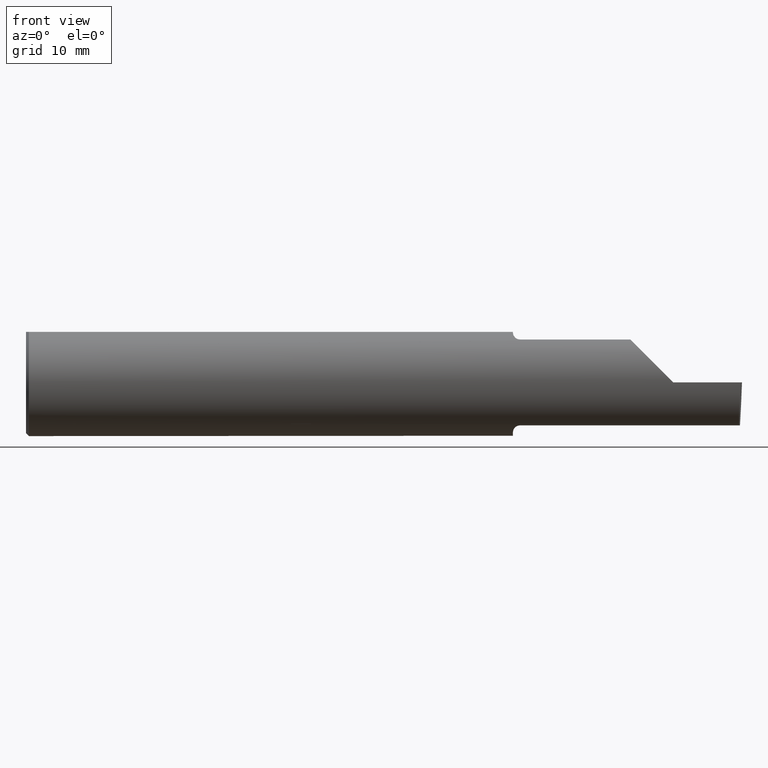
[diagram: clean part render]
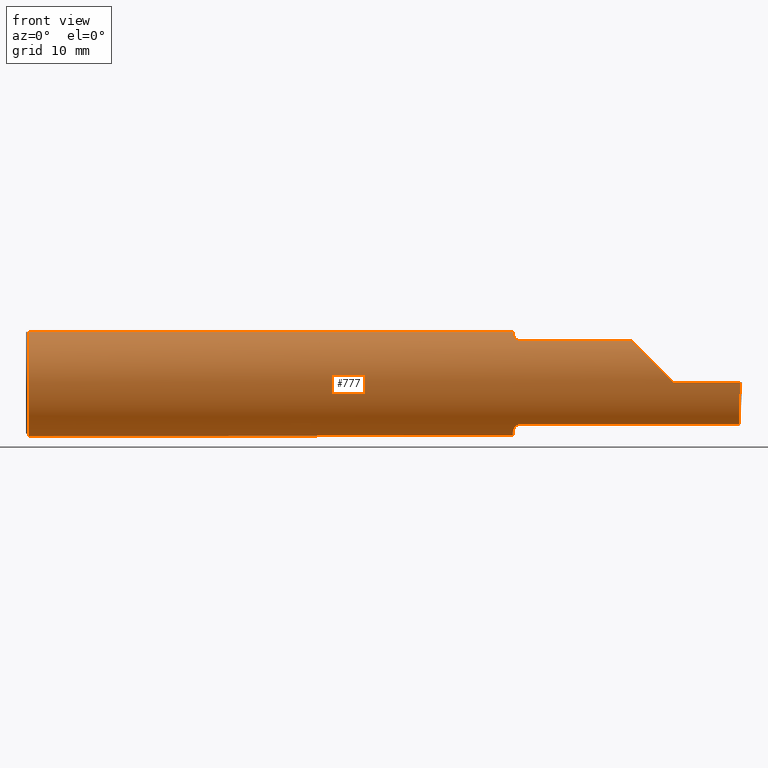
[diagram: same view with one face highlighted and labeled with its STEP entity id]
A machine part, front view. The second image highlights one B-rep face of the part: STEP entity #777.
In plain terms, the highlighted cylindrical surface (partial cylindrical patch) has radius 4.7587 mm, axis along (-1, -0, -0).
Its self-contained STEP definition (entity closure, byte-faithful):
#3 = B_SPLINE_CURVE_WITH_KNOTS ( 'NONE', 3,
 ( #626, #388, #646, #507 ),
 .UNSPECIFIED., .F., .F.,
 ( 4, 4 ),
 ( 0.001278539404338877245, 0.001694873732696222440 ),
 .UNSPECIFIED. ) ;
#14 =( BOUNDED_CURVE ( )  B_SPLINE_CURVE ( 3, ( #42, #156, #532, #283 ),
 .UNSPECIFIED., .F., .F. ) 
 B_SPLINE_CURVE_WITH_KNOTS ( ( 4, 4 ),
 ( 0.2128041086811296445, 1.107331509589577045 ),
 .UNSPECIFIED. ) 
 CURVE ( )  GEOMETRIC_REPRESENTATION_ITEM ( )  RATIONAL_B_SPLINE_CURVE ( ( 1.000000000000000000, 0.9344226172588803170, 0.9344226172588803170, 1.000000000000000000 ) ) 
 REPRESENTATION_ITEM ( '' )  );
#15 = CARTESIAN_POINT ( 'NONE',  ( 1.724999999999999867, -0.1172600179964006784, -0.1461167706989303650 ) ) ;
#16 = DIRECTION ( 'NONE',  ( -1.000000000000000000, -0.000000000000000000, -0.000000000000000000 ) ) ;
#17 = EDGE_CURVE ( 'NONE', #339, #361, #64, .T. ) ;
#29 = VERTEX_POINT ( 'NONE', #349 ) ;
#33 = EDGE_CURVE ( 'NONE', #548, #312, #539, .T. ) ;
#42 = CARTESIAN_POINT ( 'NONE',  ( 2.490040979592266890, -0.1172600179964006784, -0.1461167706989303650 ) ) ;
#57 = VERTEX_POINT ( 'NONE', #783 ) ;
#59 = CIRCLE ( 'NONE', #91, 0.1873499999999999888 ) ;
#63 = DIRECTION ( 'NONE',  ( -1.000000000000000000, -0.000000000000000000, -0.000000000000000000 ) ) ;
#64 = LINE ( 'NONE', #748, #293 ) ;
#71 = CARTESIAN_POINT ( 'NONE',  ( 0.000000000000000000, 0.000000000000000000, 0.000000000000000000 ) ) ;
#83 = CARTESIAN_POINT ( 'NONE',  ( 2.113883229301068312, -0.1172600179964008171, 0.1461167706989301707 ) ) ;
#85 = DIRECTION ( 'NONE',  ( 0.000000000000000000, 0.000000000000000000, -1.000000000000000000 ) ) ;
#91 = AXIS2_PLACEMENT_3D ( 'NONE', #584, #328, #85 ) ;
#94 = CARTESIAN_POINT ( 'NONE',  ( 1.701062863587533558, -0.08334999999998819742, 0.1677879614275170628 ) ) ;
#121 = CARTESIAN_POINT ( 'NONE',  ( 2.088979999999999837, -0.1172600179964006784, -0.1461167706989303650 ) ) ;
#123 = VECTOR ( 'NONE', #259, 39.37007874015748143 ) ;
#125 = B_SPLINE_CURVE_WITH_KNOTS ( 'NONE', 3,
 ( #94, #221, #648, #670, #291, #470, #720, #588 ),
 .UNSPECIFIED., .F., .F.,
 ( 4, 2, 2, 4 ),
 ( 0.0004561457252213466573, 0.001084815134961801542, 0.001399149839832030014, 0.001713484544702258486 ),
 .UNSPECIFIED. ) ;
#131 = B_SPLINE_CURVE_WITH_KNOTS ( 'NONE', 3,
 ( #15, #269, #226, #334, #285, #140, #530, #586, #275, #210, #615, #557 ),
 .UNSPECIFIED., .F., .F.,
 ( 4, 2, 2, 2, 2, 4 ),
 ( 1.967976973658592312E-07, 0.0001599896235275545693, 0.0003197824493577432442, 0.0006393681010181212444, 0.0009589537526784992988, 0.001278539404338877245 ),
 .UNSPECIFIED. ) ;
#137 = LINE ( 'NONE', #121, #123 ) ;
#138 = EDGE_CURVE ( 'NONE', #590, #367, #131, .T. ) ;
#139 = CIRCLE ( 'NONE', #248, 0.1873499999999999888 ) ;
#140 = CARTESIAN_POINT ( 'NONE',  ( 1.711340974786206282, -0.1102890168945987320, -0.1514792188789464700 ) ) ;
#141 = CARTESIAN_POINT ( 'NONE',  ( 0.01000000000000013205, 0.06325108694718235836, 0.1763499999999999235 ) ) ;
#143 = CARTESIAN_POINT ( 'NONE',  ( 2.113883229301068312, -0.1172600179964008171, 0.1461167706989301707 ) ) ;
#156 = CARTESIAN_POINT ( 'NONE',  ( 2.490517704308097713, -0.1623470442677540926, -0.1099340280425338268 ) ) ;
#170 = EDGE_CURVE ( 'NONE', #812, #251, #723, .T. ) ;
#177 = ORIENTED_EDGE ( 'NONE', *, *, #33, .F. ) ;
#179 = ORIENTED_EDGE ( 'NONE', *, *, #303, .F. ) ;
#206 = CARTESIAN_POINT ( 'NONE',  ( 0.01000000000000013205, 0.000000000000000000, 0.000000000000000000 ) ) ;
#210 = CARTESIAN_POINT ( 'NONE',  ( 1.702380638915944600, -0.09060738690120614947, -0.1640321561807271122 ) ) ;
#221 = CARTESIAN_POINT ( 'NONE',  ( 1.702158970028690321, -0.09067355718685707333, 0.1641499263364886718 ) ) ;
#223 = CIRCLE ( 'NONE', #488, 0.1873499999999999888 ) ;
#226 = CARTESIAN_POINT ( 'NONE',  ( 1.720804171164107332, -0.1167508198888949772, -0.1465276362740037253 ) ) ;
#229 = EDGE_CURVE ( 'NONE', #812, #57, #622, .T. ) ;
#232 = ORIENTED_EDGE ( 'NONE', *, *, #742, .F. ) ;
#233 = ORIENTED_EDGE ( 'NONE', *, *, #357, .F. ) ;
#238 = VERTEX_POINT ( 'NONE', #489 ) ;
#239 = CARTESIAN_POINT ( 'NONE',  ( 2.202189699843948745, -0.1873500000000000443, 0.05781030015605096578 ) ) ;
#240 = CARTESIAN_POINT ( 'NONE',  ( 0.01000000000000013205, 0.000000000000000000, 0.000000000000000000 ) ) ;
#241 = ORIENTED_EDGE ( 'NONE', *, *, #666, .T. ) ;
#248 = AXIS2_PLACEMENT_3D ( 'NONE', #206, #655, #786 ) ;
#251 = VERTEX_POINT ( 'NONE', #684 ) ;
#256 = EDGE_LOOP ( 'NONE', ( #233, #241, #495, #630, #232, #659, #177, #552, #427, #792, #579, #807, #179, #481, #437 ) ) ;
#259 = DIRECTION ( 'NONE',  ( -1.000000000000000000, -0.000000000000000000, -0.000000000000000000 ) ) ;
#267 = CARTESIAN_POINT ( 'NONE',  ( 0.01000000000000013205, -0.06325108694718235836, 0.1763499999999999235 ) ) ;
#269 = CARTESIAN_POINT ( 'NONE',  ( 1.722868998470238333, -0.1172600179964006922, -0.1461167706989302539 ) ) ;
#275 = CARTESIAN_POINT ( 'NONE',  ( 1.704475235432781455, -0.09757364237049408195, -0.1599863467203317680 ) ) ;
#283 = CARTESIAN_POINT ( 'NONE',  ( 2.493920841729410753, -0.1873499999999999888, 0.000000000000000000 ) ) ;
#285 = CARTESIAN_POINT ( 'NONE',  ( 1.715551048069661411, -0.1140002044565611578, -0.1486821290834929865 ) ) ;
#291 = CARTESIAN_POINT ( 'NONE',  ( 1.711319809340845488, -0.1102629523538396217, 0.1514982751257169802 ) ) ;
#293 = VECTOR ( 'NONE', #372, 39.37007874015748143 ) ;
#299 = CARTESIAN_POINT ( 'NONE',  ( 2.260000000000000231, -0.1873499999999999888, 2.939152317953647352E-17 ) ) ;
#303 = EDGE_CURVE ( 'NONE', #561, #339, #59, .T. ) ;
#312 = VERTEX_POINT ( 'NONE', #323 ) ;
#323 = CARTESIAN_POINT ( 'NONE',  ( 1.701062863587533558, -0.08334999999998819742, 0.1677879614275170628 ) ) ;
#326 = DIRECTION ( 'NONE',  ( 1.000000000000000000, 0.000000000000000000, 0.000000000000000000 ) ) ;
#328 = DIRECTION ( 'NONE',  ( 1.000000000000000000, 0.000000000000000000, 0.000000000000000000 ) ) ;
#330 = EDGE_CURVE ( 'NONE', #251, #548, #223, .T. ) ;
#334 = CARTESIAN_POINT ( 'NONE',  ( 1.717163414264744281, -0.1151183835841406849, -0.1478135984872520625 ) ) ;
#336 = EDGE_CURVE ( 'NONE', #492, #29, #515, .T. ) ;
#339 = VERTEX_POINT ( 'NONE', #385 ) ;
#342 = CARTESIAN_POINT ( 'NONE',  ( 1.699999999999999289, -0.07360907839729502466, 0.1723706084642000480 ) ) ;
#349 = CARTESIAN_POINT ( 'NONE',  ( 2.260000000000000231, -0.1873499999999999888, 2.939152317953647352E-17 ) ) ;
#357 = EDGE_CURVE ( 'NONE', #634, #590, #137, .T. ) ;
#361 = VERTEX_POINT ( 'NONE', #141 ) ;
#367 = VERTEX_POINT ( 'NONE', #641 ) ;
#369 = EDGE_CURVE ( 'NONE', #367, #561, #3, .T. ) ;
#372 = DIRECTION ( 'NONE',  ( -1.000000000000000000, -0.000000000000000000, -0.000000000000000000 ) ) ;
#385 = CARTESIAN_POINT ( 'NONE',  ( 1.699999999999999956, 0.06325108694718235836, 0.1763499999999999235 ) ) ;
#387 = LINE ( 'NONE', #694, #751 ) ;
#388 = CARTESIAN_POINT ( 'NONE',  ( 1.700346246588684940, -0.07856197451716398494, -0.1701664510438046507 ) ) ;
#427 = ORIENTED_EDGE ( 'NONE', *, *, #170, .F. ) ;
#437 = ORIENTED_EDGE ( 'NONE', *, *, #138, .F. ) ;
#443 = AXIS2_PLACEMENT_3D ( 'NONE', #240, #675, #605 ) ;
#448 = CARTESIAN_POINT ( 'NONE',  ( 1.699999999999999956, 0.000000000000000000, 0.000000000000000000 ) ) ;
#456 = DIRECTION ( 'NONE',  ( 0.000000000000000000, 0.000000000000000000, -1.000000000000000000 ) ) ;
#470 = CARTESIAN_POINT ( 'NONE',  ( 1.716924463282974322, -0.1152182125075827540, 0.1477647100440765970 ) ) ;
#473 = CARTESIAN_POINT ( 'NONE',  ( 1.699999999999999956, -0.06851976604679071992, 0.1743704796142198366 ) ) ;
#480 = CARTESIAN_POINT ( 'NONE',  ( 0.000000000000000000, -0.06325108694718235836, 0.1763499999999999235 ) ) ;
#481 = ORIENTED_EDGE ( 'NONE', *, *, #369, .F. ) ;
#487 = CARTESIAN_POINT ( 'NONE',  ( 2.150065971957465294, -0.1623470442677542591, 0.1099340280425336325 ) ) ;
#488 = AXIS2_PLACEMENT_3D ( 'NONE', #448, #496, #456 ) ;
#489 = CARTESIAN_POINT ( 'NONE',  ( 1.724999999999999867, -0.1172600179964006645, 0.1461167706989303372 ) ) ;
#492 = VERTEX_POINT ( 'NONE', #775 ) ;
#495 = ORIENTED_EDGE ( 'NONE', *, *, #336, .T. ) ;
#496 = DIRECTION ( 'NONE',  ( 1.000000000000000000, 0.000000000000000000, 0.000000000000000000 ) ) ;
#507 = CARTESIAN_POINT ( 'NONE',  ( 1.699999999999999956, -0.06851976604679071992, -0.1743704796142198366 ) ) ;
#515 = LINE ( 'NONE', #704, #686 ) ;
#524 = CARTESIAN_POINT ( 'NONE',  ( 1.700344683557281300, -0.07855153123406186100, 0.1701716388274757408 ) ) ;
#526 = CARTESIAN_POINT ( 'NONE',  ( 2.490040979592266890, -0.1172600179964006784, -0.1461167706989303650 ) ) ;
#530 = CARTESIAN_POINT ( 'NONE',  ( 1.709228130464466533, -0.1072797540790368376, -0.1536407449207395637 ) ) ;
#532 = CARTESIAN_POINT ( 'NONE',  ( 2.491901754046578876, -0.1873499999999999610, -0.05781030015605122252 ) ) ;
#539 = B_SPLINE_CURVE_WITH_KNOTS ( 'NONE', 3,
 ( #473, #342, #524, #600 ),
 .UNSPECIFIED., .F., .F.,
 ( 4, 4 ),
 ( 4.423516731080805653E-05, 0.0004561457252213466573 ),
 .UNSPECIFIED. ) ;
#548 = VERTEX_POINT ( 'NONE', #608 ) ;
#550 = CARTESIAN_POINT ( 'NONE',  ( 1.699999999999999956, -0.06851976604679071992, -0.1743704796142198366 ) ) ;
#552 = ORIENTED_EDGE ( 'NONE', *, *, #330, .F. ) ;
#557 = CARTESIAN_POINT ( 'NONE',  ( 1.701062863587535334, -0.08334999999999991027, -0.1677879614275112619 ) ) ;
#561 = VERTEX_POINT ( 'NONE', #550 ) ;
#563 = VECTOR ( 'NONE', #799, 39.37007874015748143 ) ;
#567 = EDGE_CURVE ( 'NONE', #29, #697, #667, .T. ) ;
#569 = DIRECTION ( 'NONE',  ( 0.000000000000000000, 0.000000000000000000, 1.000000000000000000 ) ) ;
#579 = ORIENTED_EDGE ( 'NONE', *, *, #637, .T. ) ;
#584 = CARTESIAN_POINT ( 'NONE',  ( 1.699999999999999956, 0.000000000000000000, 0.000000000000000000 ) ) ;
#586 = CARTESIAN_POINT ( 'NONE',  ( 1.705806801261507077, -0.1009700360460132340, -0.1578590382459147401 ) ) ;
#588 = CARTESIAN_POINT ( 'NONE',  ( 1.724999999999999867, -0.1172600179964006645, 0.1461167706989303372 ) ) ;
#590 = VERTEX_POINT ( 'NONE', #771 ) ;
#600 = CARTESIAN_POINT ( 'NONE',  ( 1.701062863587533558, -0.08334999999998819742, 0.1677879614275170628 ) ) ;
#605 = DIRECTION ( 'NONE',  ( 0.000000000000000000, 0.000000000000000000, -1.000000000000000000 ) ) ;
#608 = CARTESIAN_POINT ( 'NONE',  ( 1.699999999999999956, -0.06851976604679071992, 0.1743704796142198366 ) ) ;
#615 = CARTESIAN_POINT ( 'NONE',  ( 1.701612951569643872, -0.08702537370779857284, -0.1659621904011592819 ) ) ;
#622 = CIRCLE ( 'NONE', #443, 0.1873499999999999888 ) ;
#626 = CARTESIAN_POINT ( 'NONE',  ( 1.701062863587535334, -0.08334999999999991027, -0.1677879614275112619 ) ) ;
#630 = ORIENTED_EDGE ( 'NONE', *, *, #567, .T. ) ;
#634 = VERTEX_POINT ( 'NONE', #526 ) ;
#637 = EDGE_CURVE ( 'NONE', #57, #361, #139, .T. ) ;
#641 = CARTESIAN_POINT ( 'NONE',  ( 1.701062863587535334, -0.08334999999999991027, -0.1677879614275112619 ) ) ;
#646 = CARTESIAN_POINT ( 'NONE',  ( 1.699999999999999956, -0.07359296612170568297, -0.1723769398647691520 ) ) ;
#648 = CARTESIAN_POINT ( 'NONE',  ( 1.704075010165368775, -0.09778159395695865119, 0.1599914159748310472 ) ) ;
#655 = DIRECTION ( 'NONE',  ( 1.000000000000000000, 0.000000000000000000, 0.000000000000000000 ) ) ;
#659 = ORIENTED_EDGE ( 'NONE', *, *, #699, .F. ) ;
#666 = EDGE_CURVE ( 'NONE', #634, #492, #14, .T. ) ;
#667 =( BOUNDED_CURVE ( )  B_SPLINE_CURVE ( 3, ( #299, #239, #487, #83 ),
 .UNSPECIFIED., .F., .F. ) 
 B_SPLINE_CURVE_WITH_KNOTS ( ( 4, 4 ),
 ( 4.712388980384688786, 5.606916381293135743 ),
 .UNSPECIFIED. ) 
 CURVE ( )  GEOMETRIC_REPRESENTATION_ITEM ( )  RATIONAL_B_SPLINE_CURVE ( ( 1.000000000000000000, 0.9344226172588803170, 0.9344226172588803170, 1.000000000000000000 ) ) 
 REPRESENTATION_ITEM ( '' )  );
#670 = CARTESIAN_POINT ( 'NONE',  ( 1.709249444250374728, -0.1073163636891285855, 0.1536158790136665231 ) ) ;
#675 = DIRECTION ( 'NONE',  ( 1.000000000000000000, 0.000000000000000000, 0.000000000000000000 ) ) ;
#684 = CARTESIAN_POINT ( 'NONE',  ( 1.699999999999999956, -0.06325108694718287183, 0.1763499999999999235 ) ) ;
#686 = VECTOR ( 'NONE', #63, 39.37007874015748143 ) ;
#694 = CARTESIAN_POINT ( 'NONE',  ( 2.088979999999999837, -0.1172600179964006784, 0.1461167706989303650 ) ) ;
#697 = VERTEX_POINT ( 'NONE', #143 ) ;
#699 = EDGE_CURVE ( 'NONE', #312, #238, #125, .T. ) ;
#702 = AXIS2_PLACEMENT_3D ( 'NONE', #71, #16, #569 ) ;
#703 = FACE_OUTER_BOUND ( 'NONE', #256, .T. ) ;
#704 = CARTESIAN_POINT ( 'NONE',  ( 3.749399456654646757E-32, -0.1873499999999999610, 3.061616997868383634E-16 ) ) ;
#720 = CARTESIAN_POINT ( 'NONE',  ( 1.720724556588812071, -0.1172600179964061184, 0.1461167706989260351 ) ) ;
#723 = LINE ( 'NONE', #480, #563 ) ;
#742 = EDGE_CURVE ( 'NONE', #238, #697, #387, .T. ) ;
#748 = CARTESIAN_POINT ( 'NONE',  ( 0.000000000000000000, 0.06325108694718235836, 0.1763499999999999235 ) ) ;
#751 = VECTOR ( 'NONE', #326, 39.37007874015748143 ) ;
#760 = CYLINDRICAL_SURFACE ( 'NONE', #702, 0.1873499999999999888 ) ;
#771 = CARTESIAN_POINT ( 'NONE',  ( 1.724999999999999867, -0.1172600179964006784, -0.1461167706989303650 ) ) ;
#775 = CARTESIAN_POINT ( 'NONE',  ( 2.493920841729410753, -0.1873499999999999888, 0.000000000000000000 ) ) ;
#777 = ADVANCED_FACE ( 'NONE', ( #703 ), #760, .T. ) ;
#783 = CARTESIAN_POINT ( 'NONE',  ( 0.01000000000000013205, 0.000000000000000000, -0.1873499999999999888 ) ) ;
#786 = DIRECTION ( 'NONE',  ( 0.000000000000000000, 0.000000000000000000, -1.000000000000000000 ) ) ;
#792 = ORIENTED_EDGE ( 'NONE', *, *, #229, .T. ) ;
#799 = DIRECTION ( 'NONE',  ( 1.000000000000000000, 0.000000000000000000, 0.000000000000000000 ) ) ;
#807 = ORIENTED_EDGE ( 'NONE', *, *, #17, .F. ) ;
#812 = VERTEX_POINT ( 'NONE', #267 ) ;